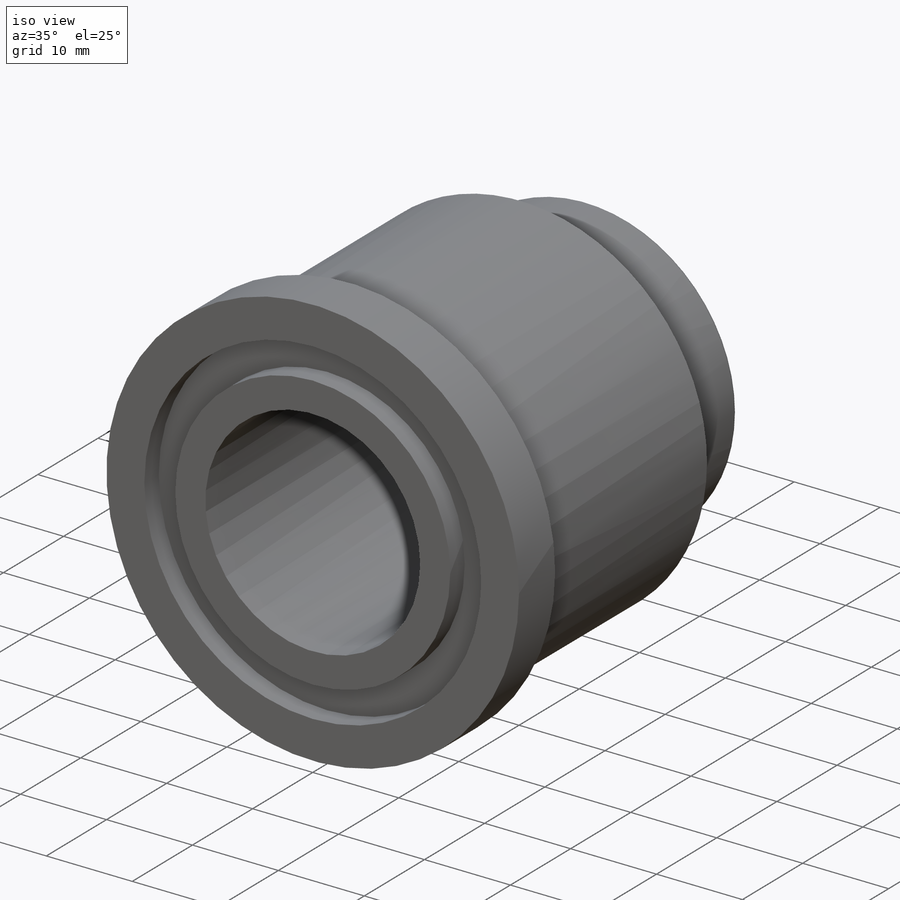
[diagram: iso view]
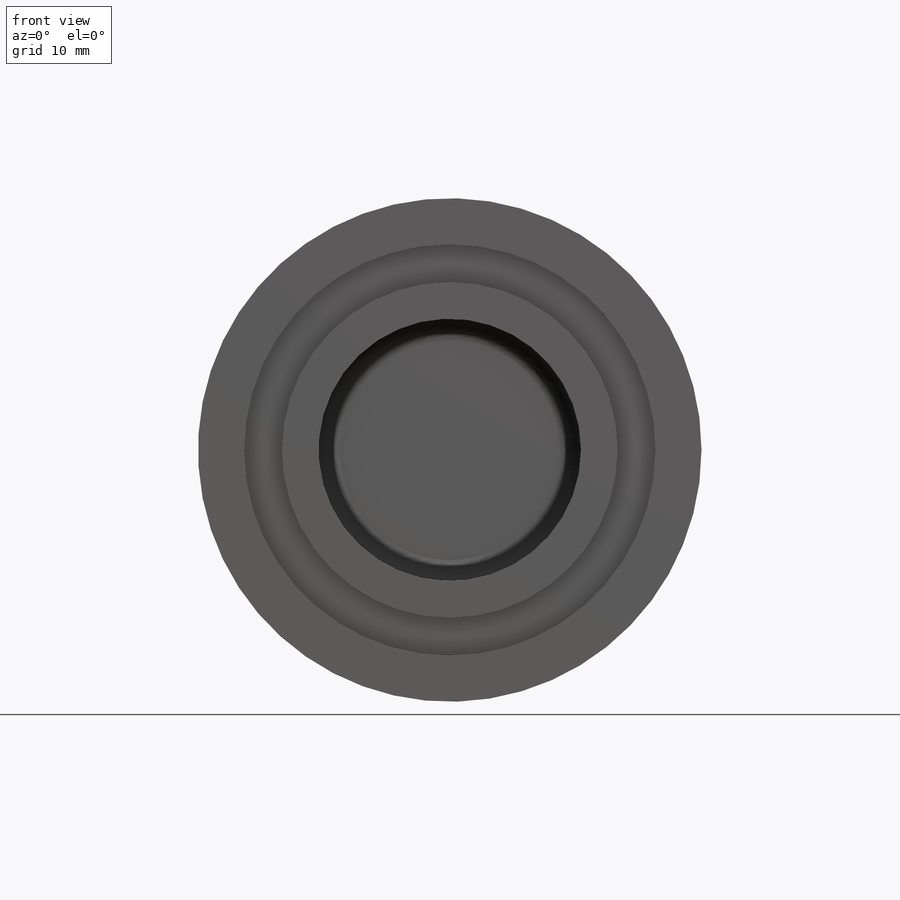
[diagram: front view]
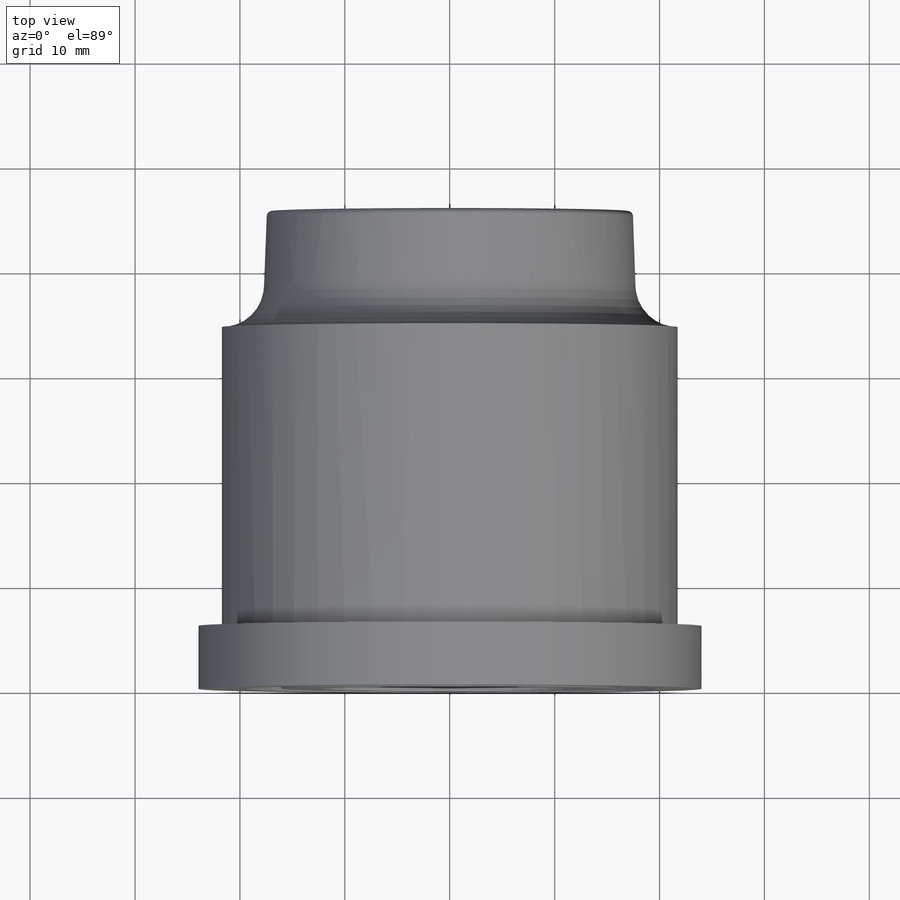
[diagram: top view]
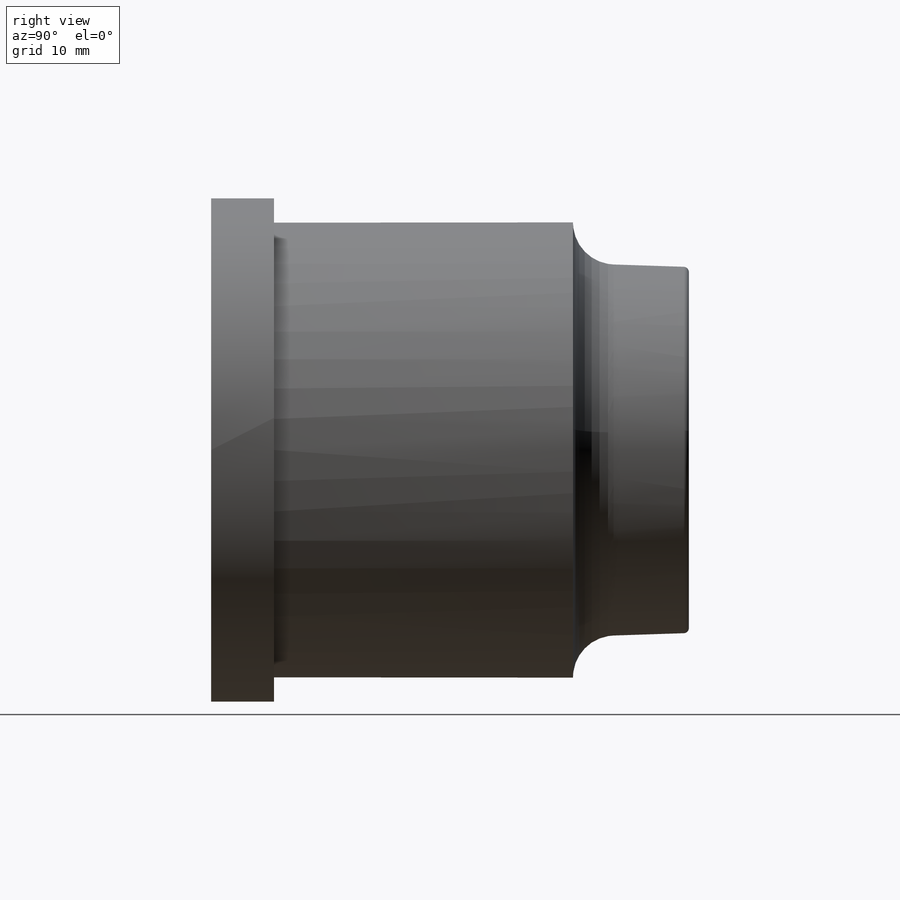
[diagram: right view]
SOLIDWORKS PART (.sldprt)
format: sldprt  version: not decoded by parser v0  size: 608,256 bytes
history: native  units: mm
features: sketch x4, extrude x2, cut_extrude x2, material x1, fillet x1 (+11 scaffold rows collapsed)
feature tree (21):
  scaffold x11  (default folders/planes/origin — collapsed)
  material  "Материал <не указан>"
  sketch  "Sketch1"
  extrude  "Extrude1"  [1 undecoded]
  sketch  "Sketch2"  dims[D1=48.0mm D2=~2.27912mm]
  extrude  "Extrude2"  Depth=6mm
  sketch  "Sketch3"  dims[D1=25.0mm]
  cut_extrude  "Extrude3"  Depth=38mm
  sketch  "Sketch4"  dims[D1=32.0mm D2=3.6mm]
  cut_extrude  "Extrude4"  Depth=2.4mm
  fillet  "Fillet1"  Radius=2mm
decode coverage: 7 of 9 modeling features carry decoded parameters
note: ~ marks probable driven/reference dimensions
note: 1 parameter value undecoded
note: suppression state not decoded; provenance and decode notes live in map.json
